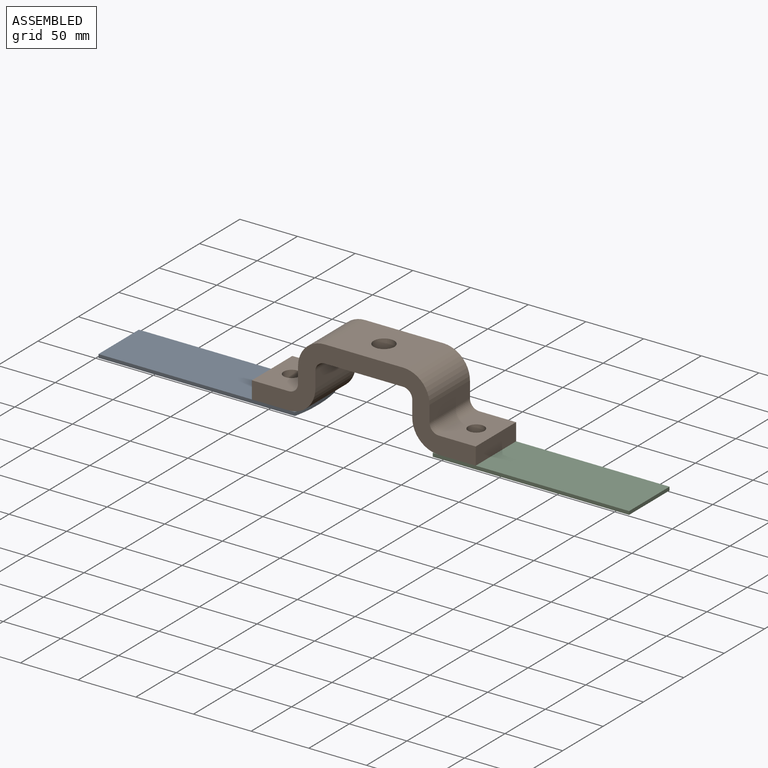
[diagram: assembled view]
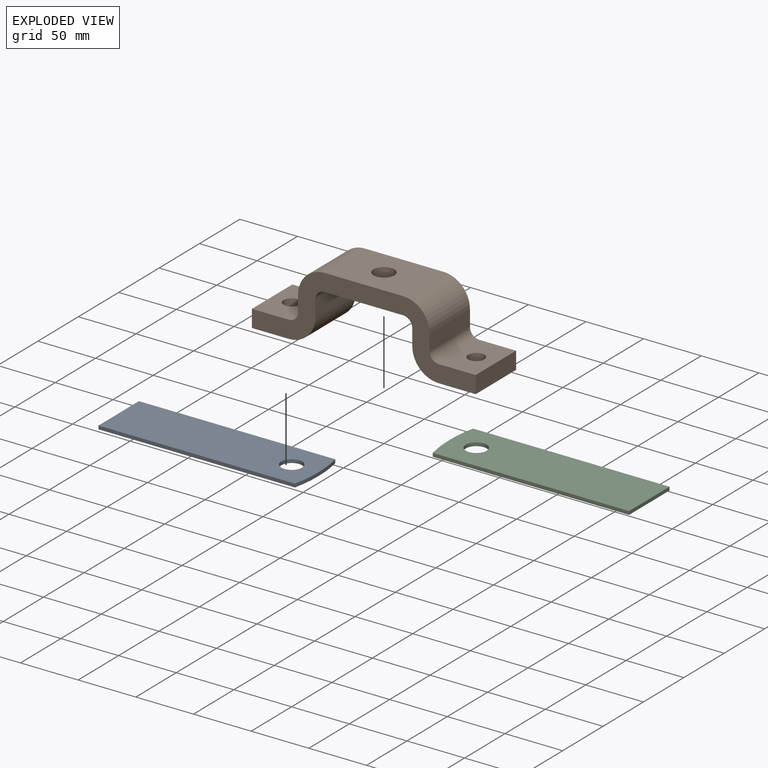
[diagram: exploded view]
GUIDED TOUR — MATED ASSEMBLY (Onshape document 05c2aa29a963e69aa2995861, AutoMate assembly 05c2aa29a963e69aa2995861_7a4f94b30cb1642494e6ea74_38c81aad11b547eb4f16aba1_default)

This assembly has 3 components, labeled P0..P2 below (a component is one placed occurrence of a part; the same part can appear more than once), held together by 2 mates. A mate is a constraint between two components; its type names the relative motion it leaves free:
  REVOLUTE — leaves rotation about the listed axis free (a hinge).
Axis/direction vectors are unit vectors and 'through' points are millimeter coordinates, both in the assembly's world frame.

MATES
  1. REVOLUTE "Revolute 2": P0 <-> P1, axis (0.000, 0.000, 1.000) through (-21.07, 65.93, -51.46) mm
  2. REVOLUTE "Revolute 1": P2 <-> P1, axis (0.000, 0.000, 1.000) through (138.93, 65.93, -51.46) mm

ASSEMBLY ORDER
  1. P2 — the base component [order verified]
  2. P0 [order verified]
  3. P1 [order verified]
Order-tag legend:
  [order verified] — this step's position reverses a verified removal order: the component was checked to insert without passing through the ones already placed.

Of the 3 components, 3 carry the full construction recipe — the FeatureScript program that regenerates the part's solid from scratch; the rest are supplied as boundary geometry only.
Each toured component is shown spotlighted twice — in the assembled view, then in the exploded view, where a leader line traces a displaced component back to its assembled socket (saturated green if recipe-attached, orange if geometry-only; every other component desaturated gray) — followed by its recipe or geometry summary and the mates that hold it.
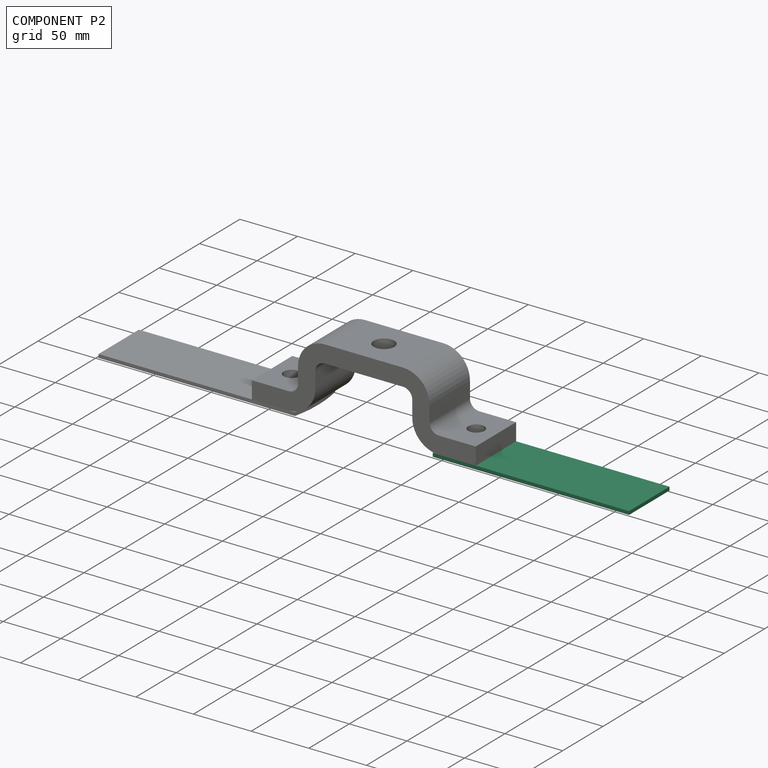
[diagram: component P2 — assembled]
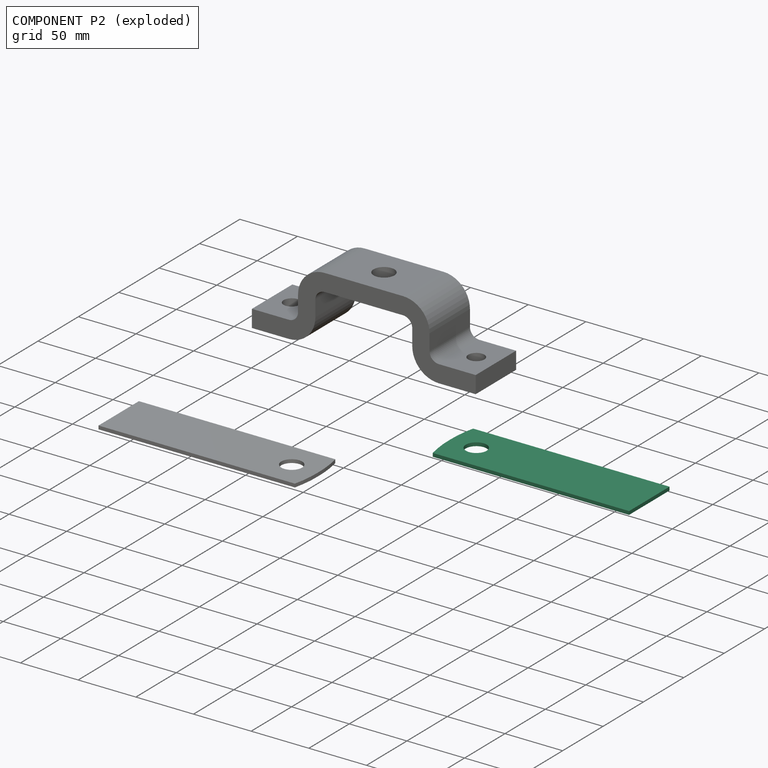
[diagram: component P2 — exploded]
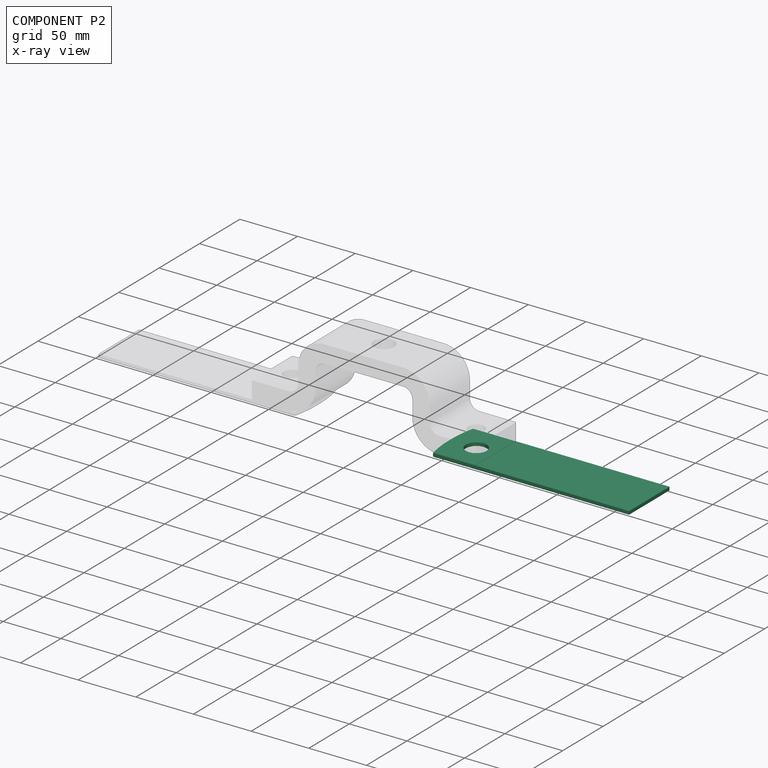
[diagram: component P2 — x-ray view]
COMPONENT P2 — same part as P0 (CADFS 00574615); its construction recipe is shown at P0.
Held by: REVOLUTE mate "Revolute 1" to P1.
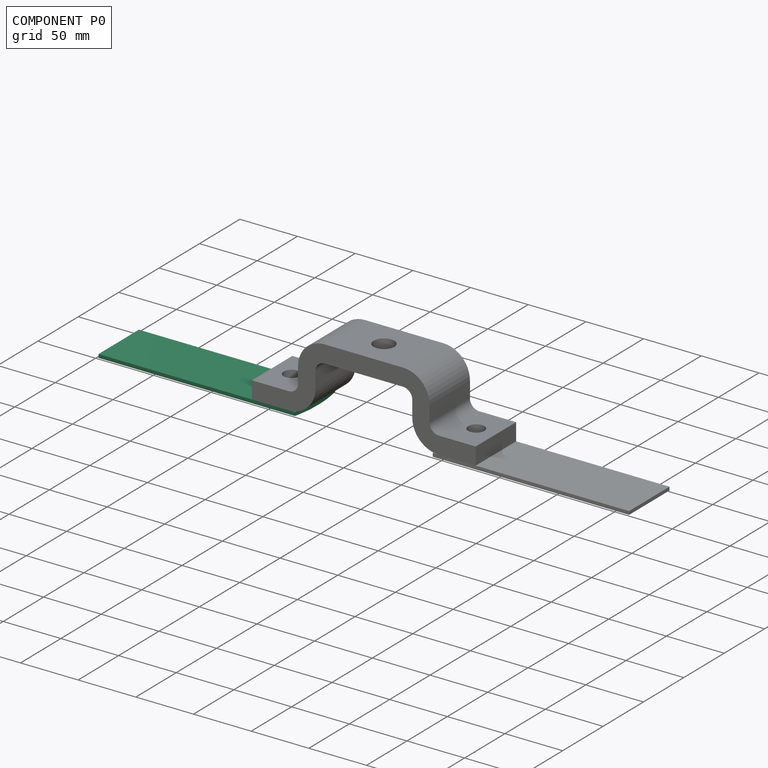
[diagram: component P0 — assembled]
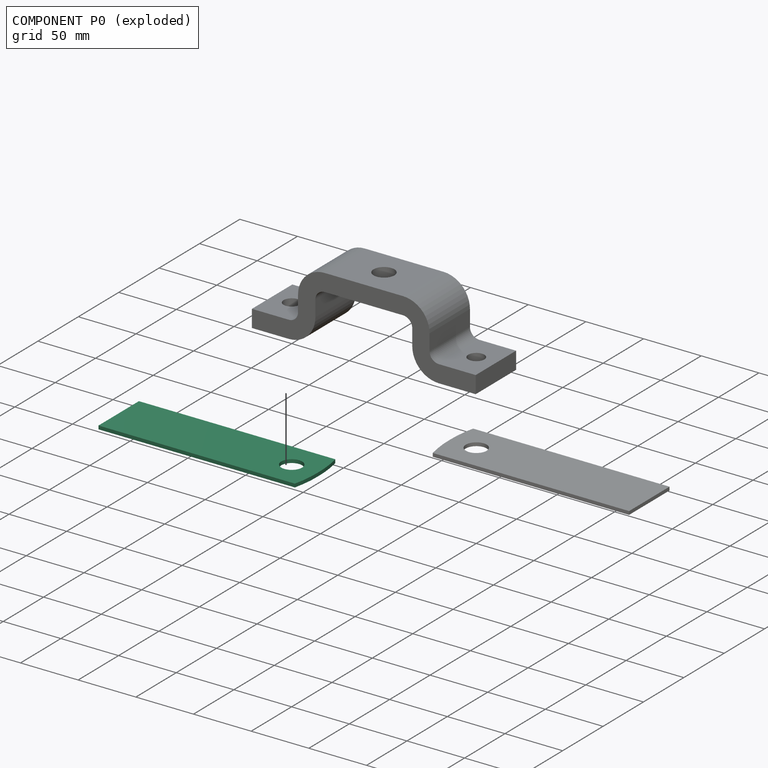
[diagram: component P0 — exploded]
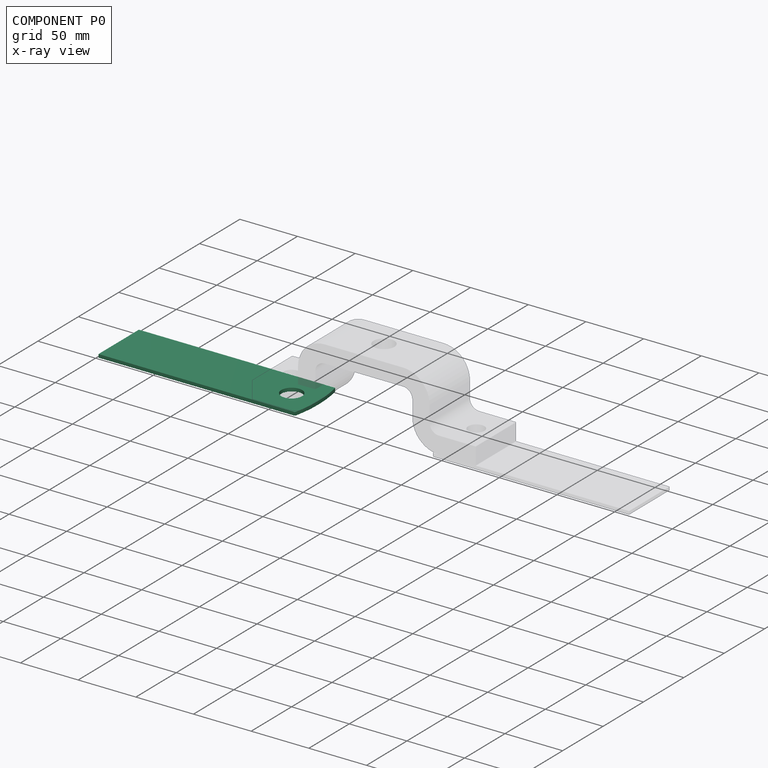
[diagram: component P0 — x-ray view]
COMPONENT P0 — recipe-attached (CADFS 00574615, mesh-verified: the recipe's output STEP matches this component's geometry to below the mesh-comparison resolution (tessellation chordal tolerance ~0.27 mm)).
Held by: REVOLUTE mate "Revolute 2" to P1.
Construction recipe (FeatureScript — the CAD program that rebuilds this solid; sketch coordinates are in the units given by the * unit suffixes, e.g. mm):

FeatureScript 1605;
import(path : "onshape/std/geometry.fs", version : "1605.0");
import(path : "onshape/std/common.fs", version : "1605.0");
const mm = millimeter;
const VERTEX = EntityType.VERTEX;
const EDGE = EntityType.EDGE;
const FACE = EntityType.FACE;
const BODY = EntityType.BODY;
function v(x, y){return vector(x, y);}
function OD(order){return orderDisambiguation(order);}
function OSD(set){return originalSetDisambiguation(set);}
function TD(topology){return topologyDisambiguation(topology);}
function TDD(query){return trueDependencyDisambiguation(query);}
function sQuery(a, b, c) {return sketchEntityQuery(a, b, c);}

annotation { "Feature Type Name" : "Feature", "Feature Type Description" : "" }
export const myFeature = defineFeature(function(context is Context, id is Id, definition is map)
    precondition{}
    {
        {
            var Q0;
            Q0=qCreatedBy(makeId("Top.planeOp"),FACE);
            var sketch = newSketch(context, id + "F0", { "sketchPlane" : qUnion([Q0])});
            skLineSegment(sketch, "E0.bottom", {"start": v(0, 0) * mm, "end": v(50, 0) * mm});
            skLineSegment(sketch, "E0.left", {"start": v(0, 0) * mm, "end": v(0, 170.26) * mm});
            skLineSegment(sketch, "E0.right", {"start": v(50, 0) * mm, "end": v(50, 170.26) * mm});
            skCircle(sketch, "E1", {"center": v(25, 150) * mm, "radius": 9 * mm});
            skArc(sketch, "E2", {"start": v(25, 173) * mm, "mid": v(37.58, 172.39) * mm, "end": v(50, 170.26) * mm});
            skArc(sketch, "E3.MirrorCS", {"start": v(25, 173) * mm, "mid": v(12.42, 172.39) * mm, "end": v(0, 170.26) * mm});
            skSolve(sketch);
        }
        {
            var Q0;
            Q0=makeQuery(id+"F0.imprint","IMPRINT",FACE,{"disambiguationData":[TD([[makeQuery(id+"F0.imprint","IMPRINT",EDGE,{"derivedFrom":sQuery(id+"F0.wireOp",EDGE,"E0.bottom")}),1.0]])]});
            extrude(context, id + "F1", {"entities" : qUnion([Q0]), "depth" : 3 * mm, "offsetDistance" : 25 * mm});
        }
    });
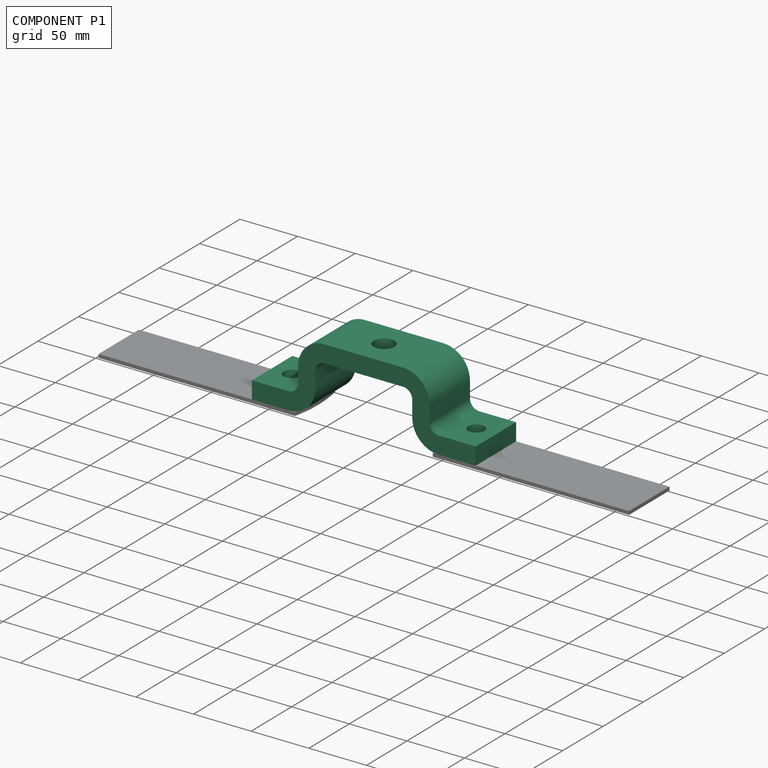
[diagram: component P1 — assembled]
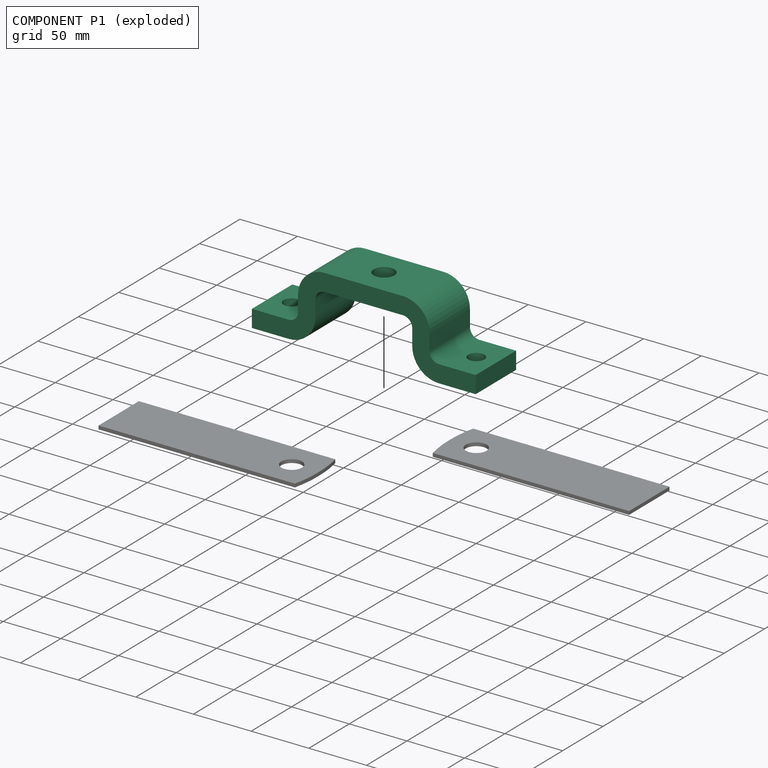
[diagram: component P1 — exploded]
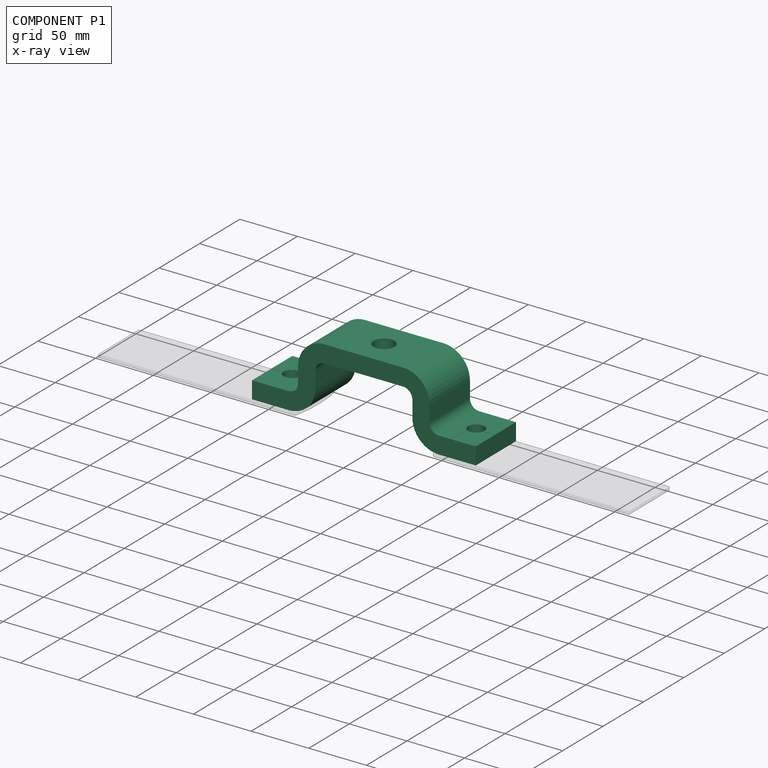
[diagram: component P1 — x-ray view]
COMPONENT P1 — recipe-attached (CADFS 00574614, mesh-verified: the recipe's output STEP matches this component's geometry to below the mesh-comparison resolution (tessellation chordal tolerance ~0.314 mm)).
Held by: REVOLUTE mate "Revolute 2" to P0; REVOLUTE mate "Revolute 1" to P2.
Construction recipe (FeatureScript — the CAD program that rebuilds this solid; sketch coordinates are in the units given by the * unit suffixes, e.g. mm):

FeatureScript 1605;
import(path : "onshape/std/geometry.fs", version : "1605.0");
import(path : "onshape/std/common.fs", version : "1605.0");
const mm = millimeter;
const VERTEX = EntityType.VERTEX;
const EDGE = EntityType.EDGE;
const FACE = EntityType.FACE;
const BODY = EntityType.BODY;
function v(x, y){return vector(x, y);}
function OD(order){return orderDisambiguation(order);}
function OSD(set){return originalSetDisambiguation(set);}
function TD(topology){return topologyDisambiguation(topology);}
function TDD(query){return trueDependencyDisambiguation(query);}
function sQuery(a, b, c) {return sketchEntityQuery(a, b, c);}

annotation { "Feature Type Name" : "Feature", "Feature Type Description" : "" }
export const myFeature = defineFeature(function(context is Context, id is Id, definition is map)
    precondition{}
    {
        {
            var Q0;
            Q0=qCreatedBy(makeId("Front.planeOp"),FACE);
            var sketch = newSketch(context, id + "F0", { "sketchPlane" : qUnion([Q0])});
            skLineSegment(sketch, "E0", {"start": v(0, 0) * mm, "end": v(0, 15) * mm});
            skLineSegment(sketch, "E1", {"start": v(0, 15) * mm, "end": v(32, 15) * mm});
            skLineSegment(sketch, "E2", {"start": v(40, 23) * mm, "end": v(40, 37) * mm});
            skLineSegment(sketch, "E3", {"start": v(63, 60) * mm, "end": v(135, 60) * mm});
            skLineSegment(sketch, "E4", {"start": v(135, 45) * mm, "end": v(63, 45) * mm});
            skLineSegment(sketch, "E5", {"start": v(55, 37) * mm, "end": v(55, 23) * mm});
            skLineSegment(sketch, "E6", {"start": v(32, 0) * mm, "end": v(0, 0) * mm});
            skPoint(sketch, "E7.visualSharp", {"position": v(55, 45) * mm});
            skArc(sketch, "E7.filletArc", {"start": v(63, 45) * mm, "mid": v(57.34, 42.66) * mm, "end": v(55, 37) * mm});
            skPoint(sketch, "E8.visualSharp", {"position": v(40, 15) * mm});
            skArc(sketch, "E8.filletArc", {"start": v(32, 15) * mm, "mid": v(37.66, 17.34) * mm, "end": v(40, 23) * mm});
            skPoint(sketch, "E9.visualSharp", {"position": v(55, 0) * mm});
            skArc(sketch, "E9.filletArc", {"start": v(32, 0) * mm, "mid": v(48.26, 6.74) * mm, "end": v(55, 23) * mm});
            skPoint(sketch, "E10.visualSharp", {"position": v(40, 60) * mm});
            skArc(sketch, "E10.filletArc", {"start": v(63, 60) * mm, "mid": v(46.74, 53.26) * mm, "end": v(40, 37) * mm});
            skLineSegment(sketch, "E11.MirrorCS", {"start": v(194, 0) * mm, "end": v(194, 15) * mm});
            skPoint(sketch, "E12.MirrorP", {"position": v(230, 60) * mm});
            skLineSegment(sketch, "E13.MirrorCS", {"start": v(194, 15) * mm, "end": v(162, 15) * mm});
            skPoint(sketch, "E14.MirrorP", {"position": v(215, 45) * mm});
            skPoint(sketch, "E15.MirrorP", {"position": v(230, 15) * mm});
            skPoint(sketch, "E16.MirrorP", {"position": v(215, 0) * mm});
            skArc(sketch, "E17.MirrorCS", {"start": v(131, 60) * mm, "mid": v(147.26, 53.26) * mm, "end": v(154, 37) * mm});
            skArc(sketch, "E18.MirrorCS", {"start": v(162, 0) * mm, "mid": v(145.74, 6.74) * mm, "end": v(139, 23) * mm});
            skLineSegment(sketch, "E19.MirrorCS", {"start": v(154, 23) * mm, "end": v(154, 37) * mm});
            skLineSegment(sketch, "E20.MirrorCS", {"start": v(139, 37) * mm, "end": v(139, 23) * mm});
            skLineSegment(sketch, "E21.MirrorCS", {"start": v(162, 0) * mm, "end": v(194, 0) * mm});
            skLineSegment(sketch, "E22.MirrorCS", {"start": v(131, 60) * mm, "end": v(59, 60) * mm});
            skArc(sketch, "E23.MirrorCS", {"start": v(162, 15) * mm, "mid": v(156.34, 17.34) * mm, "end": v(154, 23) * mm});
            skArc(sketch, "E24.MirrorCS", {"start": v(131, 45) * mm, "mid": v(136.66, 42.66) * mm, "end": v(139, 37) * mm});
            skLineSegment(sketch, "E25.MirrorCS", {"start": v(59, 45) * mm, "end": v(131, 45) * mm});
            skSolve(sketch);
        }
        {
            var Q0;
            Q0=makeQuery(id+"F0.imprint","IMPRINT",FACE,{"disambiguationData":[TD([[makeQuery(id+"F0.imprint","IMPRINT",EDGE,{"derivedFrom":sQuery(id+"F0.wireOp",EDGE,"E0")}),-1.0]])]});
            extrude(context, id + "F1", {"entities" : qUnion([Q0]), "depth" : 50 * mm, "offsetDistance" : 25 * mm});
        }
        {
            var Q0;
            Q0=qCreatedBy(makeId("Top.planeOp"),FACE);
            var sketch = newSketch(context, id + "F2", { "sketchPlane" : qUnion([Q0])});
            skPoint(sketch, "E26", {"position": v(17, -25) * mm});
            skPoint(sketch, "E27", {"position": v(177, -25) * mm});
            skSolve(sketch);
        }
        {
            var Q0;
            Q0=makeQuery(id+"F1.opExtrude","SWEPT_FACE",FACE,{"disambiguationData":[OSD([sQuery(id+"F0.wireOp",EDGE,"E4"),sQuery(id+"F0.wireOp",EDGE,"E25.MirrorCS")])]});
            cPlane(context, id + "F3", {"entities" : qUnion([Q0]), "cplaneType" : CPlaneType.OFFSET, "offset" : 0 * mm, "width" : 150 * mm, "height" : 150 * mm});
        }
        {
            var Q0;
            Q0=qCreatedBy(id+"F3.planeOp",FACE);
            var sketch = newSketch(context, id + "F4", { "sketchPlane" : qUnion([Q0])});
            skPoint(sketch, "E28", {"position": v(97, 25) * mm});
            skSolve(sketch);
        }
        {
            var Q0;
            Q0=sQuery(id+"F4.wireOp",VERTEX,"E28");
            var Q1;
            Q1=makeQuery(id+"F1.opExtrude","SWEPT_BODY",BODY,{"disambiguationData":[OSD([sQuery(id+"F0.wireOp",EDGE,"E0"),sQuery(id+"F0.wireOp",EDGE,"E1"),sQuery(id+"F0.wireOp",EDGE,"E2"),sQuery(id+"F0.wireOp",EDGE,"E3"),sQuery(id+"F0.wireOp",EDGE,"E4"),sQuery(id+"F0.wireOp",EDGE,"E5"),sQuery(id+"F0.wireOp",EDGE,"E6"),sQuery(id+"F0.wireOp",EDGE,"E7.filletArc"),sQuery(id+"F0.wireOp",EDGE,"E8.filletArc"),sQuery(id+"F0.wireOp",EDGE,"E9.filletArc"),sQuery(id+"F0.wireOp",EDGE,"E10.filletArc"),sQuery(id+"F0.wireOp",EDGE,"E11.MirrorCS"),sQuery(id+"F0.wireOp",EDGE,"E13.MirrorCS"),sQuery(id+"F0.wireOp",EDGE,"E17.MirrorCS"),sQuery(id+"F0.wireOp",EDGE,"E18.MirrorCS"),sQuery(id+"F0.wireOp",EDGE,"E19.MirrorCS"),sQuery(id+"F0.wireOp",EDGE,"E20.MirrorCS"),sQuery(id+"F0.wireOp",EDGE,"E21.MirrorCS"),sQuery(id+"F0.wireOp",EDGE,"E22.MirrorCS"),sQuery(id+"F0.wireOp",EDGE,"E23.MirrorCS"),sQuery(id+"F0.wireOp",EDGE,"E24.MirrorCS"),sQuery(id+"F0.wireOp",EDGE,"E25.MirrorCS")])]});
            hole(context, id + "F5", {"style" : HoleStyle.SIMPLE, "endStyle" : HoleEndStyle.THROUGH, "holeDiameter" : 18 * mm, "isTappedThrough" : true, "tappedDepth" : 12 * mm, "tapClearance" : 3, "locations" : qUnion([Q0]), "scope" : qUnion([Q1])});
        }
        {
            var Q0;
            Q0=sQuery(id+"F2.wireOp",VERTEX,"E26");
            var Q1;
            Q1=makeQuery(id+"F1.opExtrude","SWEPT_BODY",BODY,{"disambiguationData":[OSD([sQuery(id+"F0.wireOp",EDGE,"E0"),sQuery(id+"F0.wireOp",EDGE,"E1"),sQuery(id+"F0.wireOp",EDGE,"E2"),sQuery(id+"F0.wireOp",EDGE,"E5"),sQuery(id+"F0.wireOp",EDGE,"E6"),sQuery(id+"F0.wireOp",EDGE,"E7.filletArc"),sQuery(id+"F0.wireOp",EDGE,"E8.filletArc"),sQuery(id+"F0.wireOp",EDGE,"E9.filletArc"),sQuery(id+"F0.wireOp",EDGE,"E10.filletArc"),sQuery(id+"F0.wireOp",EDGE,"E11.MirrorCS"),sQuery(id+"F0.wireOp",EDGE,"E13.MirrorCS"),sQuery(id+"F0.wireOp",EDGE,"E17.MirrorCS"),sQuery(id+"F0.wireOp",EDGE,"E18.MirrorCS"),sQuery(id+"F0.wireOp",EDGE,"E19.MirrorCS"),sQuery(id+"F0.wireOp",EDGE,"E20.MirrorCS"),sQuery(id+"F0.wireOp",EDGE,"E21.MirrorCS"),sQuery(id+"F0.wireOp",EDGE,"E22.MirrorCS"),sQuery(id+"F0.wireOp",EDGE,"E23.MirrorCS"),sQuery(id+"F0.wireOp",EDGE,"E24.MirrorCS"),sQuery(id+"F0.wireOp",EDGE,"E25.MirrorCS")])]});
            hole(context, id + "F6", {"style" : HoleStyle.SIMPLE, "endStyle" : HoleEndStyle.THROUGH, "oppositeDirection" : true, "holeDiameter" : 14 * mm, "isTappedThrough" : true, "tappedDepth" : 12 * mm, "tapClearance" : 3, "locations" : qUnion([Q0]), "scope" : qUnion([Q1])});
        }
        {
            var Q0;
            Q0=sQuery(id+"F2.wireOp",VERTEX,"E27");
            var Q1;
            Q1=makeQuery(id+"F1.opExtrude","SWEPT_BODY",BODY,{"disambiguationData":[OSD([sQuery(id+"F0.wireOp",EDGE,"E0"),sQuery(id+"F0.wireOp",EDGE,"E1"),sQuery(id+"F0.wireOp",EDGE,"E2"),sQuery(id+"F0.wireOp",EDGE,"E5"),sQuery(id+"F0.wireOp",EDGE,"E6"),sQuery(id+"F0.wireOp",EDGE,"E7.filletArc"),sQuery(id+"F0.wireOp",EDGE,"E8.filletArc"),sQuery(id+"F0.wireOp",EDGE,"E9.filletArc"),sQuery(id+"F0.wireOp",EDGE,"E10.filletArc"),sQuery(id+"F0.wireOp",EDGE,"E11.MirrorCS"),sQuery(id+"F0.wireOp",EDGE,"E13.MirrorCS"),sQuery(id+"F0.wireOp",EDGE,"E17.MirrorCS"),sQuery(id+"F0.wireOp",EDGE,"E18.MirrorCS"),sQuery(id+"F0.wireOp",EDGE,"E19.MirrorCS"),sQuery(id+"F0.wireOp",EDGE,"E20.MirrorCS"),sQuery(id+"F0.wireOp",EDGE,"E21.MirrorCS"),sQuery(id+"F0.wireOp",EDGE,"E22.MirrorCS"),sQuery(id+"F0.wireOp",EDGE,"E23.MirrorCS"),sQuery(id+"F0.wireOp",EDGE,"E24.MirrorCS"),sQuery(id+"F0.wireOp",EDGE,"E25.MirrorCS")])]});
            hole(context, id + "F7", {"style" : HoleStyle.SIMPLE, "endStyle" : HoleEndStyle.THROUGH, "oppositeDirection" : true, "holeDiameter" : 14 * mm, "isTappedThrough" : true, "tappedDepth" : 12 * mm, "tapClearance" : 3, "locations" : qUnion([Q0]), "scope" : qUnion([Q1])});
        }
    });
PROVENANCE & LICENSES
Assembly (occurrences, transforms, mates, per-part STEP geometry): AutoMate dataset, Zenodo record 7776208, CC0.
Construction recipes: CADFS (HuggingFace VladPyatov/CADFS, CC-BY-4.0, layered over the ABC dataset), FeatureScript reconstruction programs keyed by ABC model id.
Join: ABC meta listings map ABC model id -> Onshape documentId; within a shared document, parts are matched by geometric signature (bounding-box dims + volume at 0.1% relative tolerance, exact B-rep face/solid counts).
Verification: 3 of this assembly's 3 components carry a recipe attachment, and every attachment is mesh-verified: the CADFS STEP and the AutoMate member STEP were compared as meshes in their shared local frame (symmetric sampled-point-to-mesh distance); worst across the 3 attachments: below the mesh-comparison resolution (tessellation chordal tolerance ~0.314 mm) on a 209 mm part.
Renders: orthographic iso camera (az 35 / el 25); the floor grid conveys scale (grid pitch printed in each image; no ruler). In the exploded view each component is displaced by its stored offset vector: the offsets alone carry the explosion direction (mate normal/axis signs are not orientation cues and do not encode it), and separation distances are assigned per mate-chain, not proportionally to assembly-order depth.
